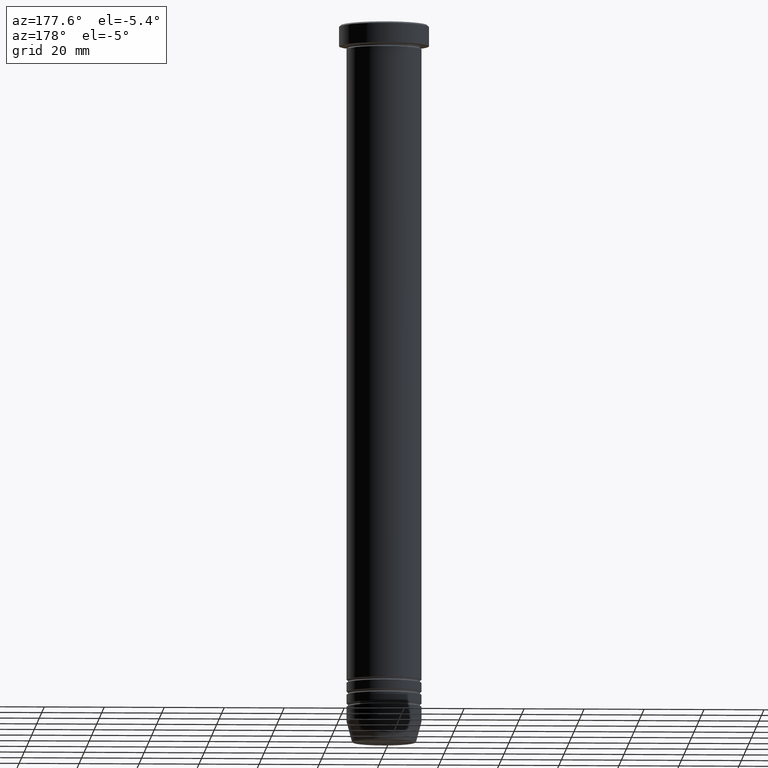
[diagram: clean part render]
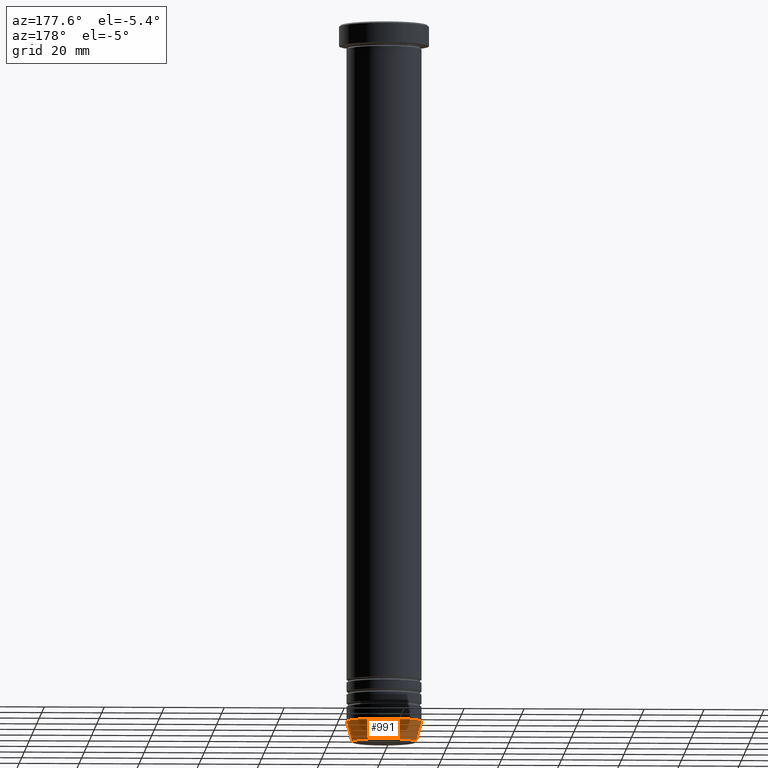
[diagram: same view with one face highlighted and labeled with its STEP entity id]
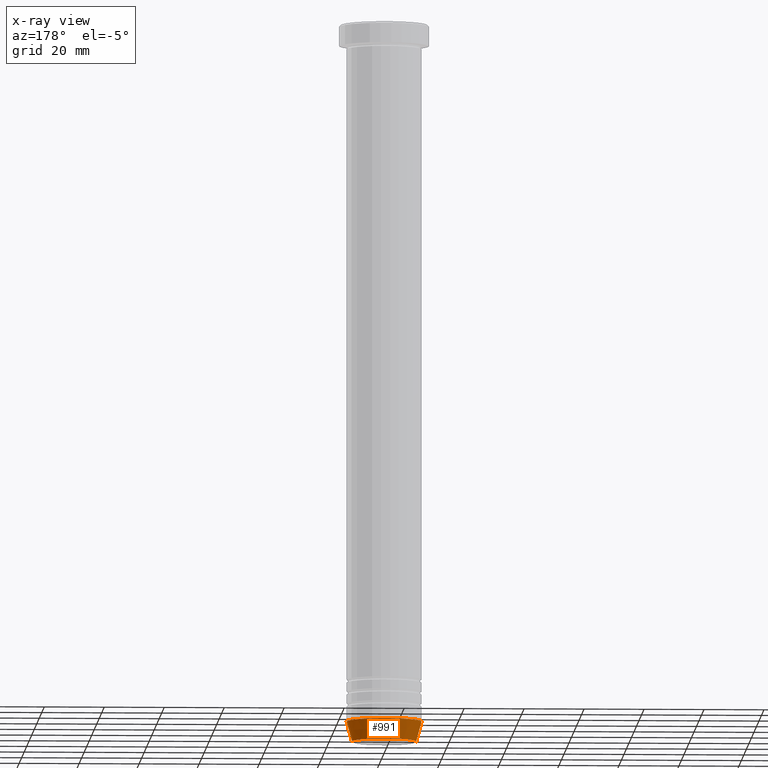
[diagram: x-ray of the same camera — body ghosted, the highlighted face saturated]
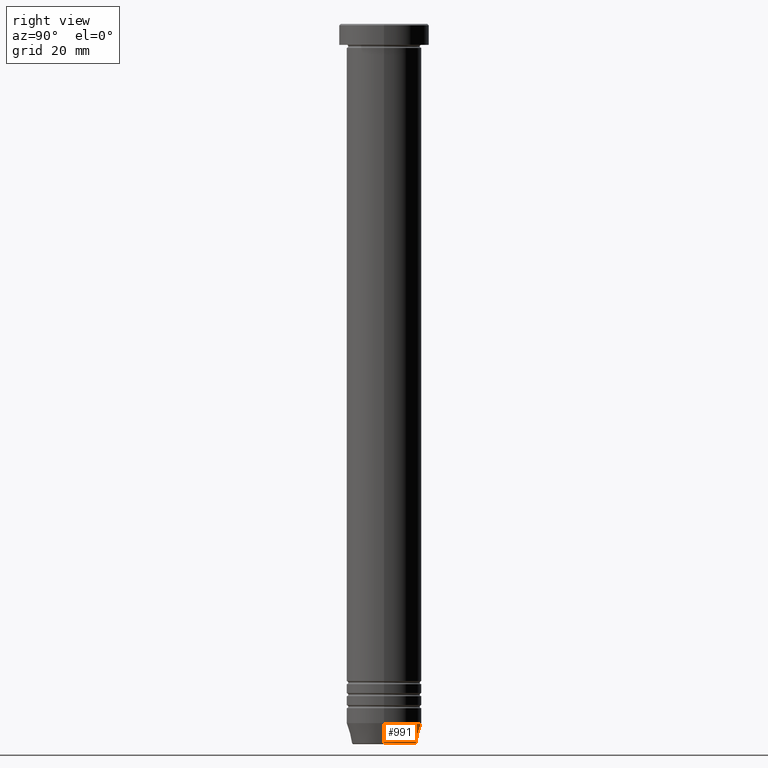
[diagram: same view with one face highlighted and labeled with its STEP entity id]
A machine part, auxiliary view. The second image highlights one B-rep face of the part: STEP entity #991.
The next image is the same camera in x-ray: the body ghosted, the highlighted face saturated — about 0% of this face is hidden behind the body in this view.
A second angle (right view) of the same face is appended — the face is thin or edge-on in the first view.
In plain terms, the highlighted conical surface has half-angle 15 deg.
Its self-contained STEP definition (entity closure, byte-faithful):
#28 = EDGE_CURVE ( 'NONE', #762, #898, #1014, .T. ) ;
#68 = VECTOR ( 'NONE', #553, 1000.000000000000114 ) ;
#76 = CARTESIAN_POINT ( 'NONE',  ( 10.62435565298212481, 0.000000000000000000, -240.0000000000000568 ) ) ;
#85 = CARTESIAN_POINT ( 'NONE',  ( 10.72365507213717706, 0.000000000000000000, -239.6294095225513274 ) ) ;
#116 = DIRECTION ( 'NONE',  ( -0.000000000000000000, -0.000000000000000000, 1.000000000000000000 ) ) ;
#198 = ORIENTED_EDGE ( 'NONE', *, *, #28, .T. ) ;
#210 = FACE_OUTER_BOUND ( 'NONE', #343, .T. ) ;
#266 = DIRECTION ( 'NONE',  ( -0.000000000000000000, -0.000000000000000000, 1.000000000000000000 ) ) ;
#282 = DIRECTION ( 'NONE',  ( 1.000000000000000000, 0.000000000000000000, 0.000000000000000000 ) ) ;
#340 = VERTEX_POINT ( 'NONE', #572 ) ;
#341 = CONICAL_SURFACE ( 'NONE', #694, 10.62435565298212481, 0.2617993877991502960 ) ;
#343 = EDGE_LOOP ( 'NONE', ( #198, #989, #444, #655 ) ) ;
#429 = CIRCLE ( 'NONE', #1032, 12.50000000000000000 ) ;
#443 = AXIS2_PLACEMENT_3D ( 'NONE', #490, #266, #828 ) ;
#444 = ORIENTED_EDGE ( 'NONE', *, *, #487, .F. ) ;
#450 = CARTESIAN_POINT ( 'NONE',  ( 0.000000000000000000, 0.000000000000000000, -233.0000000000000000 ) ) ;
#478 = LINE ( 'NONE', #882, #68 ) ;
#487 = EDGE_CURVE ( 'NONE', #937, #340, #429, .T. ) ;
#490 = CARTESIAN_POINT ( 'NONE',  ( 0.000000000000000000, 0.000000000000000000, -239.6294095225513274 ) ) ;
#553 = DIRECTION ( 'NONE',  ( -0.2588190451025216277, 3.169619151431776035E-17, 0.9659258262890679791 ) ) ;
#572 = CARTESIAN_POINT ( 'NONE',  ( -12.50000000000000000, 1.530808498934191521E-15, -233.0000000000000000 ) ) ;
#603 = DIRECTION ( 'NONE',  ( -0.000000000000000000, -0.000000000000000000, 1.000000000000000000 ) ) ;
#631 = EDGE_CURVE ( 'NONE', #898, #340, #478, .T. ) ;
#655 = ORIENTED_EDGE ( 'NONE', *, *, #714, .F. ) ;
#689 = CARTESIAN_POINT ( 'NONE',  ( 0.000000000000000000, 0.000000000000000000, -240.0000000000000568 ) ) ;
#694 = AXIS2_PLACEMENT_3D ( 'NONE', #689, #116, #282 ) ;
#714 = EDGE_CURVE ( 'NONE', #762, #937, #876, .T. ) ;
#762 = VERTEX_POINT ( 'NONE', #85 ) ;
#828 = DIRECTION ( 'NONE',  ( -1.000000000000000000, 0.000000000000000000, 0.000000000000000000 ) ) ;
#843 = CARTESIAN_POINT ( 'NONE',  ( 12.50000000000000000, 0.000000000000000000, -233.0000000000000000 ) ) ;
#851 = DIRECTION ( 'NONE',  ( 1.000000000000000000, 0.000000000000000000, 0.000000000000000000 ) ) ;
#876 = LINE ( 'NONE', #76, #958 ) ;
#882 = CARTESIAN_POINT ( 'NONE',  ( -10.62435565298212481, 1.301108314342764740E-15, -240.0000000000000568 ) ) ;
#898 = VERTEX_POINT ( 'NONE', #992 ) ;
#937 = VERTEX_POINT ( 'NONE', #843 ) ;
#958 = VECTOR ( 'NONE', #1040, 1000.000000000000114 ) ;
#989 = ORIENTED_EDGE ( 'NONE', *, *, #631, .T. ) ;
#991 = ADVANCED_FACE ( 'NONE', ( #210 ), #341, .T. ) ;
#992 = CARTESIAN_POINT ( 'NONE',  ( -10.72365507213717706, 1.422038742429749332E-15, -239.6294095225513274 ) ) ;
#1014 = CIRCLE ( 'NONE', #443, 10.72365507213717706 ) ;
#1032 = AXIS2_PLACEMENT_3D ( 'NONE', #450, #603, #851 ) ;
#1040 = DIRECTION ( 'NONE',  ( 0.2588190451025216277, 0.000000000000000000, 0.9659258262890679791 ) ) ;